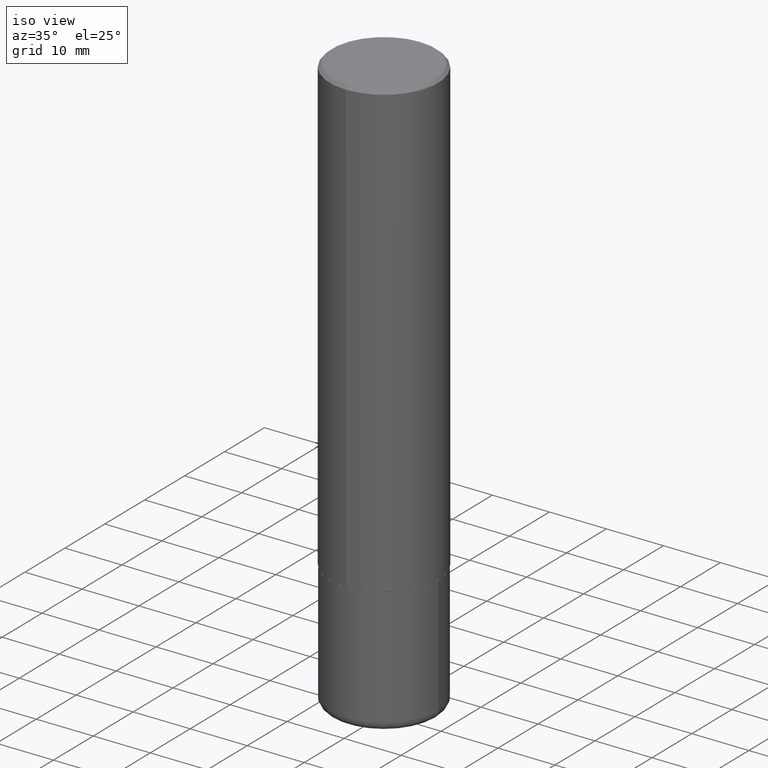
[diagram: clean part render]
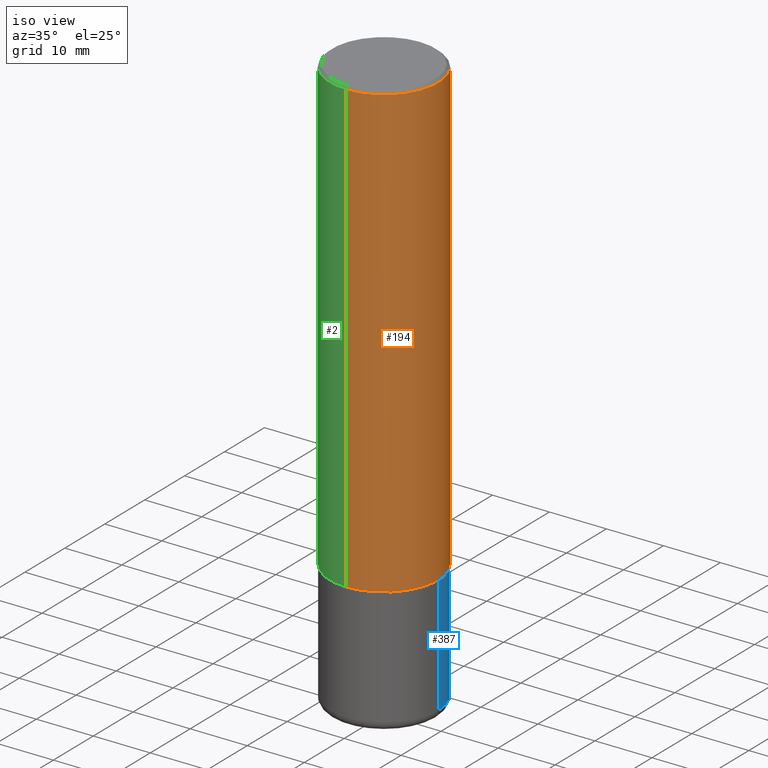
[diagram: same view with three faces highlighted in distinct colors, each labeled with its STEP entity id]
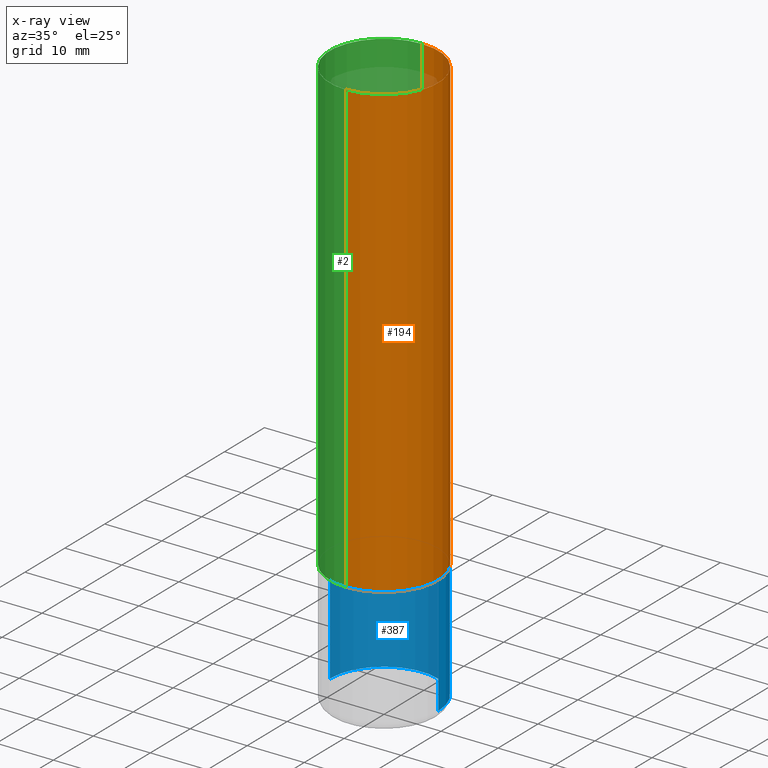
[diagram: x-ray of the same camera — body ghosted, the three highlighted faces saturated]
A machine part, iso view with three faces highlighted in distinct colors.
The next image is the same camera in x-ray (body ghosted, the three faces saturated) — at least one of them is partly hidden behind the body in this view.
Their STEP definitions:

[orange] entity #194 — the highlighted cylindrical surface (partial cylindrical patch) has radius 9.525 mm, axis along (-0, 0, 1).
#6 = LINE ( 'NONE', #319, #210 ) ;
#8 = CARTESIAN_POINT ( 'NONE',  ( 7.641292512262471991E-29, -1.090502772753799986E-14, -3.124000000000000554 ) ) ;
#17 = VERTEX_POINT ( 'NONE', #220 ) ;
#36 = DIRECTION ( 'NONE',  ( -6.982962677686266711E-15, -1.000000000000000000, 3.490725905101792415E-15 ) ) ;
#50 = ORIENTED_EDGE ( 'NONE', *, *, #266, .T. ) ;
#62 = CARTESIAN_POINT ( 'NONE',  ( 2.618611004132350016E-15, 0.3749999999999998890, -0.02000000000000139513 ) ) ;
#70 = CARTESIAN_POINT ( 'NONE',  ( -2.618611004132276258E-15, -0.3750000000000113243, -3.123999999999999222 ) ) ;
#75 = DIRECTION ( 'NONE',  ( -6.982962677686265922E-15, -1.000000000000000000, 2.913971193241877611E-15 ) ) ;
#81 = VERTEX_POINT ( 'NONE', #62 ) ;
#95 = CIRCLE ( 'NONE', #244, 0.3749999999999999445 ) ;
#134 = DIRECTION ( 'NONE',  ( -2.445996322747269804E-29, 3.490725905101792415E-15, 1.000000000000000000 ) ) ;
#149 = AXIS2_PLACEMENT_3D ( 'NONE', #350, #315, #36 ) ;
#151 = CARTESIAN_POINT ( 'NONE',  ( 2.664535259100376486E-15, 0.3750000000000001665, -1.309022214413172797E-15 ) ) ;
#165 = VERTEX_POINT ( 'NONE', #70 ) ;
#177 = EDGE_CURVE ( 'NONE', #165, #294, #263, .T. ) ;
#194 = ADVANCED_FACE ( 'NONE', ( #326 ), #364, .T. ) ;
#203 = DIRECTION ( 'NONE',  ( -6.982962677686266711E-15, -1.000000000000000000, 3.494488891895537218E-15 ) ) ;
#210 = VECTOR ( 'NONE', #267, 39.37007874015748143 ) ;
#220 = CARTESIAN_POINT ( 'NONE',  ( -2.572686749164323153E-15, -0.3750000000000000555, -0.01999999999999877570 ) ) ;
#224 = ORIENTED_EDGE ( 'NONE', *, *, #356, .F. ) ;
#235 = AXIS2_PLACEMENT_3D ( 'NONE', #8, #134, #75 ) ;
#238 = ORIENTED_EDGE ( 'NONE', *, *, #391, .F. ) ;
#244 = AXIS2_PLACEMENT_3D ( 'NONE', #385, #330, #203 ) ;
#263 = CIRCLE ( 'NONE', #235, 0.3750000000000003886 ) ;
#266 = EDGE_CURVE ( 'NONE', #294, #81, #299, .T. ) ;
#267 = DIRECTION ( 'NONE',  ( -2.445996322747270084E-29, 3.490725905101792021E-15, 1.000000000000000000 ) ) ;
#290 = VECTOR ( 'NONE', #351, 39.37007874015748143 ) ;
#294 = VERTEX_POINT ( 'NONE', #324 ) ;
#299 = LINE ( 'NONE', #151, #290 ) ;
#302 = ORIENTED_EDGE ( 'NONE', *, *, #177, .T. ) ;
#315 = DIRECTION ( 'NONE',  ( -2.445996322747269804E-29, 3.490725905101792415E-15, 1.000000000000000000 ) ) ;
#319 = CARTESIAN_POINT ( 'NONE',  ( -2.618611004132351200E-15, -0.3750000000000001665, 1.309022214413172797E-15 ) ) ;
#324 = CARTESIAN_POINT ( 'NONE',  ( 2.664535259100415534E-15, 0.3749999999999894529, -3.124000000000001442 ) ) ;
#326 = FACE_OUTER_BOUND ( 'NONE', #332, .T. ) ;
#330 = DIRECTION ( 'NONE',  ( -2.445996322747269804E-29, 3.490725905101792415E-15, 1.000000000000000000 ) ) ;
#332 = EDGE_LOOP ( 'NONE', ( #302, #50, #238, #224 ) ) ;
#350 = CARTESIAN_POINT ( 'NONE',  ( 0.000000000000000000, 0.000000000000000000, 0.000000000000000000 ) ) ;
#351 = DIRECTION ( 'NONE',  ( -2.445996322747270084E-29, 3.490725905101792021E-15, 1.000000000000000000 ) ) ;
#356 = EDGE_CURVE ( 'NONE', #165, #17, #6, .T. ) ;
#364 = CYLINDRICAL_SURFACE ( 'NONE', #149, 0.3750000000000001665 ) ;
#385 = CARTESIAN_POINT ( 'NONE',  ( 4.891992645494561398E-31, -6.981451810203614264E-17, -0.02000000000000008715 ) ) ;
#391 = EDGE_CURVE ( 'NONE', #17, #81, #95, .T. ) ;

[blue] entity #387 — the highlighted cylindrical surface (partial cylindrical patch) has radius 9.525 mm, axis along (-0, 0, 1).
#11 = VERTEX_POINT ( 'NONE', #375 ) ;
#16 = ORIENTED_EDGE ( 'NONE', *, *, #211, .T. ) ;
#38 = DIRECTION ( 'NONE',  ( -2.445468806185136877E-29, 3.491481338843145188E-15, 1.000000000000000000 ) ) ;
#45 = VERTEX_POINT ( 'NONE', #65 ) ;
#46 = EDGE_CURVE ( 'NONE', #11, #401, #261, .T. ) ;
#56 = DIRECTION ( 'NONE',  ( 1.000000000000000000, -6.982962677686266711E-15, 0.000000000000000000 ) ) ;
#65 = CARTESIAN_POINT ( 'NONE',  ( 0.3749999999999999445, -1.637504747917434403E-14, -3.939999999999999947 ) ) ;
#102 = LINE ( 'NONE', #157, #193 ) ;
#130 = DIRECTION ( 'NONE',  ( 1.000000000000000000, -6.982962677686265922E-15, 4.876176775795935793E-29 ) ) ;
#132 = AXIS2_PLACEMENT_3D ( 'NONE', #341, #249, #56 ) ;
#136 = EDGE_CURVE ( 'NONE', #295, #401, #264, .T. ) ;
#157 = CARTESIAN_POINT ( 'NONE',  ( 0.3750000000000000555, -2.618611004132350016E-15, 1.828566290923476203E-29 ) ) ;
#161 = CARTESIAN_POINT ( 'NONE',  ( -0.3749999999999999445, -1.109190121594161832E-14, -3.939999999999999947 ) ) ;
#176 = CARTESIAN_POINT ( 'NONE',  ( 7.642090019328551865E-29, -1.091087918388483118E-14, -3.125000000000000000 ) ) ;
#192 = CIRCLE ( 'NONE', #132, 0.3750000000000000555 ) ;
#193 = VECTOR ( 'NONE', #349, 39.37007874015748143 ) ;
#211 = EDGE_CURVE ( 'NONE', #45, #295, #192, .T. ) ;
#223 = DIRECTION ( 'NONE',  ( 1.000000000000000000, -6.982962677686266711E-15, 0.000000000000000000 ) ) ;
#226 = CARTESIAN_POINT ( 'NONE',  ( -0.3750000000000000555, -9.669122570363036899E-15, -3.125000000000000000 ) ) ;
#228 = AXIS2_PLACEMENT_3D ( 'NONE', #320, #269, #130 ) ;
#232 = FACE_OUTER_BOUND ( 'NONE', #354, .T. ) ;
#249 = DIRECTION ( 'NONE',  ( -2.445468806185136597E-29, 3.491481338843145583E-15, 1.000000000000000000 ) ) ;
#261 = CIRCLE ( 'NONE', #397, 0.3750000000000000555 ) ;
#264 = LINE ( 'NONE', #325, #415 ) ;
#269 = DIRECTION ( 'NONE',  ( -2.445468806185136597E-29, 3.491481338843145583E-15, 1.000000000000000000 ) ) ;
#279 = ORIENTED_EDGE ( 'NONE', *, *, #136, .T. ) ;
#295 = VERTEX_POINT ( 'NONE', #161 ) ;
#301 = DIRECTION ( 'NONE',  ( -2.445468806185136597E-29, 3.491481338843145583E-15, 1.000000000000000000 ) ) ;
#320 = CARTESIAN_POINT ( 'NONE',  ( 0.000000000000000000, 0.000000000000000000, 0.000000000000000000 ) ) ;
#325 = CARTESIAN_POINT ( 'NONE',  ( -0.3750000000000000555, 2.664535259100376091E-15, -1.844600658845589598E-29 ) ) ;
#341 = CARTESIAN_POINT ( 'NONE',  ( 9.635147096369438236E-29, -1.375643647504199401E-14, -3.939999999999999947 ) ) ;
#349 = DIRECTION ( 'NONE',  ( -2.445468806185136877E-29, 3.491481338843145188E-15, 1.000000000000000000 ) ) ;
#352 = CYLINDRICAL_SURFACE ( 'NONE', #228, 0.3750000000000000555 ) ;
#354 = EDGE_LOOP ( 'NONE', ( #16, #279, #370, #359 ) ) ;
#359 = ORIENTED_EDGE ( 'NONE', *, *, #371, .F. ) ;
#370 = ORIENTED_EDGE ( 'NONE', *, *, #46, .F. ) ;
#371 = EDGE_CURVE ( 'NONE', #45, #11, #102, .T. ) ;
#375 = CARTESIAN_POINT ( 'NONE',  ( 0.3750000000000000555, -1.352949018801718119E-14, -3.125000000000000000 ) ) ;
#387 = ADVANCED_FACE ( 'NONE', ( #232 ), #352, .T. ) ;
#397 = AXIS2_PLACEMENT_3D ( 'NONE', #176, #301, #223 ) ;
#401 = VERTEX_POINT ( 'NONE', #226 ) ;
#415 = VECTOR ( 'NONE', #38, 39.37007874015748143 ) ;

[green] entity #2 — the highlighted cylindrical surface (partial cylindrical patch) has radius 9.525 mm, axis along (-0, 0, 1).
#2 = ADVANCED_FACE ( 'NONE', ( #366 ), #333, .T. ) ;
#6 = LINE ( 'NONE', #319, #210 ) ;
#12 = ORIENTED_EDGE ( 'NONE', *, *, #266, .F. ) ;
#17 = VERTEX_POINT ( 'NONE', #220 ) ;
#58 = DIRECTION ( 'NONE',  ( -2.445996322747269804E-29, 3.490725905101792415E-15, 1.000000000000000000 ) ) ;
#62 = CARTESIAN_POINT ( 'NONE',  ( 2.618611004132350016E-15, 0.3749999999999998890, -0.02000000000000139513 ) ) ;
#70 = CARTESIAN_POINT ( 'NONE',  ( -2.618611004132276258E-15, -0.3750000000000113243, -3.123999999999999222 ) ) ;
#74 = AXIS2_PLACEMENT_3D ( 'NONE', #216, #390, #163 ) ;
#76 = EDGE_CURVE ( 'NONE', #81, #17, #367, .T. ) ;
#81 = VERTEX_POINT ( 'NONE', #62 ) ;
#87 = ORIENTED_EDGE ( 'NONE', *, *, #356, .T. ) ;
#110 = EDGE_LOOP ( 'NONE', ( #12, #274, #87, #271 ) ) ;
#117 = EDGE_CURVE ( 'NONE', #294, #165, #142, .T. ) ;
#118 = DIRECTION ( 'NONE',  ( -6.982962677686266711E-15, -1.000000000000000000, 3.494488891895537218E-15 ) ) ;
#142 = CIRCLE ( 'NONE', #74, 0.3750000000000003886 ) ;
#151 = CARTESIAN_POINT ( 'NONE',  ( 2.664535259100376486E-15, 0.3750000000000001665, -1.309022214413172797E-15 ) ) ;
#160 = AXIS2_PLACEMENT_3D ( 'NONE', #175, #58, #407 ) ;
#163 = DIRECTION ( 'NONE',  ( -6.982962677686265922E-15, -1.000000000000000000, 2.913971193241877611E-15 ) ) ;
#165 = VERTEX_POINT ( 'NONE', #70 ) ;
#175 = CARTESIAN_POINT ( 'NONE',  ( 0.000000000000000000, 0.000000000000000000, 0.000000000000000000 ) ) ;
#181 = CARTESIAN_POINT ( 'NONE',  ( 4.891992645494561398E-31, -6.981451810203614264E-17, -0.02000000000000008715 ) ) ;
#210 = VECTOR ( 'NONE', #267, 39.37007874015748143 ) ;
#216 = CARTESIAN_POINT ( 'NONE',  ( 7.641292512262471991E-29, -1.090502772753799986E-14, -3.124000000000000554 ) ) ;
#220 = CARTESIAN_POINT ( 'NONE',  ( -2.572686749164323153E-15, -0.3750000000000000555, -0.01999999999999877570 ) ) ;
#243 = AXIS2_PLACEMENT_3D ( 'NONE', #181, #247, #118 ) ;
#247 = DIRECTION ( 'NONE',  ( -2.445996322747269804E-29, 3.490725905101792415E-15, 1.000000000000000000 ) ) ;
#266 = EDGE_CURVE ( 'NONE', #294, #81, #299, .T. ) ;
#267 = DIRECTION ( 'NONE',  ( -2.445996322747270084E-29, 3.490725905101792021E-15, 1.000000000000000000 ) ) ;
#271 = ORIENTED_EDGE ( 'NONE', *, *, #76, .F. ) ;
#274 = ORIENTED_EDGE ( 'NONE', *, *, #117, .T. ) ;
#290 = VECTOR ( 'NONE', #351, 39.37007874015748143 ) ;
#294 = VERTEX_POINT ( 'NONE', #324 ) ;
#299 = LINE ( 'NONE', #151, #290 ) ;
#319 = CARTESIAN_POINT ( 'NONE',  ( -2.618611004132351200E-15, -0.3750000000000001665, 1.309022214413172797E-15 ) ) ;
#324 = CARTESIAN_POINT ( 'NONE',  ( 2.664535259100415534E-15, 0.3749999999999894529, -3.124000000000001442 ) ) ;
#333 = CYLINDRICAL_SURFACE ( 'NONE', #160, 0.3750000000000001665 ) ;
#351 = DIRECTION ( 'NONE',  ( -2.445996322747270084E-29, 3.490725905101792021E-15, 1.000000000000000000 ) ) ;
#356 = EDGE_CURVE ( 'NONE', #165, #17, #6, .T. ) ;
#366 = FACE_OUTER_BOUND ( 'NONE', #110, .T. ) ;
#367 = CIRCLE ( 'NONE', #243, 0.3749999999999999445 ) ;
#390 = DIRECTION ( 'NONE',  ( -2.445996322747269804E-29, 3.490725905101792415E-15, 1.000000000000000000 ) ) ;
#407 = DIRECTION ( 'NONE',  ( -6.982962677686266711E-15, -1.000000000000000000, 3.490725905101792415E-15 ) ) ;